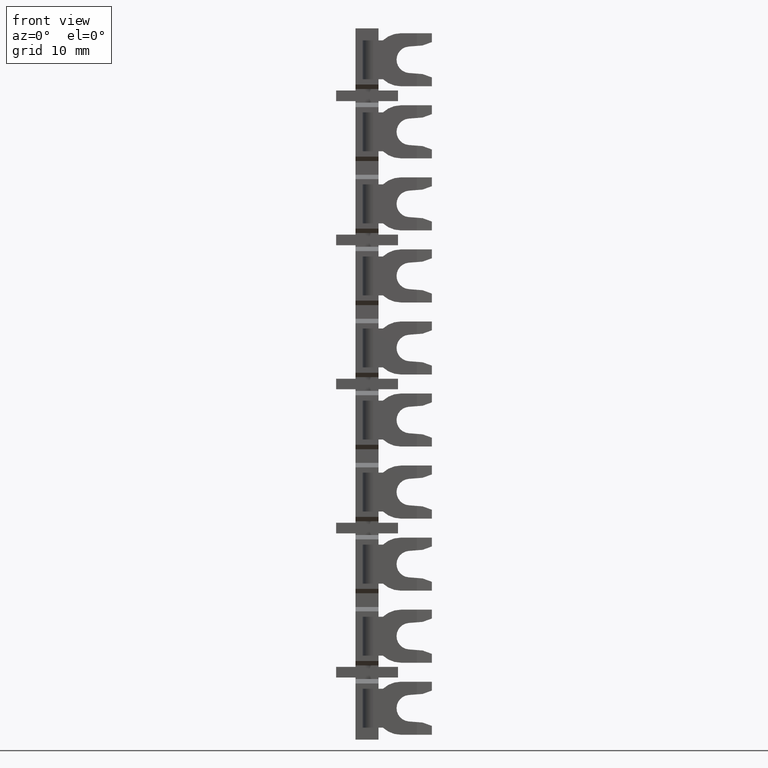
[diagram: clean part render]
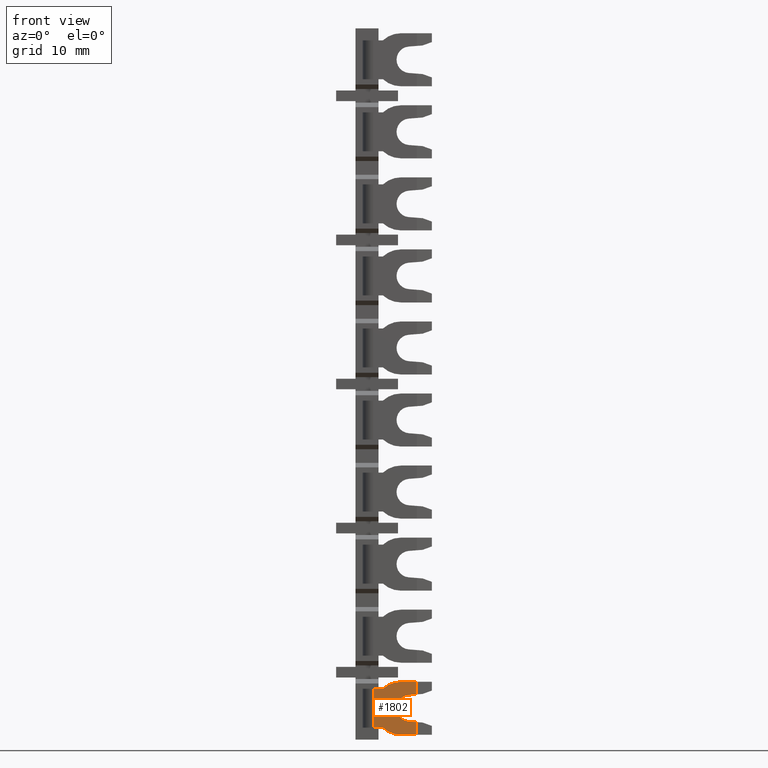
[diagram: same view with one face highlighted and labeled with its STEP entity id]
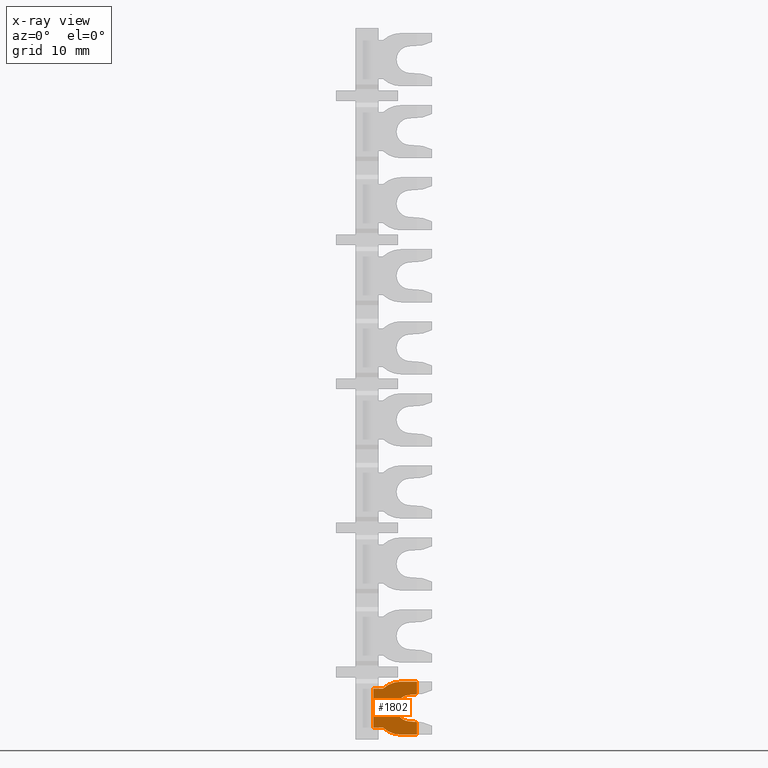
[diagram: x-ray of the same camera — body ghosted, the highlighted face saturated]
A machine part, front view. The second image highlights one B-rep face of the part: STEP entity #1802.
The next image is the same camera in x-ray: the body ghosted, the highlighted face saturated — about 0% of this face is hidden behind the body in this view.
In plain terms, the highlighted planar face has unit normal (0, -1, -0).
Its self-contained STEP definition (entity closure, byte-faithful):
#866 = CARTESIAN_POINT ( 'NONE',  ( 1557.581277334165000, 1078.959529724810000, -66.29999999999999700 ) ) ;
#909 = CARTESIAN_POINT ( 'NONE',  ( 1559.379892790780100, 1078.959529724810000, -66.29999999999999700 ) ) ;
#920 = CARTESIAN_POINT ( 'NONE',  ( 1559.379892790780100, 1078.959529724810000, -72.29999999999999700 ) ) ;
#923 = CARTESIAN_POINT ( 'NONE',  ( 1559.379892790780100, 1078.959529724810000, -70.86695253472190400 ) ) ;
#946 = CARTESIAN_POINT ( 'NONE',  ( 1558.465335063180000, 1078.959529724810000, -70.79543455379109700 ) ) ;
#947 = CARTESIAN_POINT ( 'NONE',  ( 1559.379892790780100, 1078.959529724810000, -67.73304746527878700 ) ) ;
#951 = CARTESIAN_POINT ( 'NONE',  ( 1558.465335063180000, 1078.959529724810000, -67.80456544620939500 ) ) ;
#966 = CARTESIAN_POINT ( 'NONE',  ( 1557.581277334165000, 1078.959529724810000, -72.29999999999999700 ) ) ;
#1802 = ADVANCED_FACE ( 'NONE', ( #12430 ), #12406, .T. ) ;
#2122 = EDGE_LOOP ( 'NONE', ( #14140, #14122, #14130, #14089, #14134, #14159, #14151, #14097, #14126, #14183, #14197, #14186 ) ) ;
#2170 = VERTEX_POINT ( 'NONE', #11976 ) ;
#2212 = VERTEX_POINT ( 'NONE', #12010 ) ;
#2222 = VERTEX_POINT ( 'NONE', #12056 ) ;
#2317 = VERTEX_POINT ( 'NONE', #12144 ) ;
#2691 = VERTEX_POINT ( 'NONE', #920 ) ;
#2692 = VERTEX_POINT ( 'NONE', #866 ) ;
#2696 = VERTEX_POINT ( 'NONE', #909 ) ;
#2727 = VERTEX_POINT ( 'NONE', #947 ) ;
#2728 = VERTEX_POINT ( 'NONE', #946 ) ;
#2738 = VERTEX_POINT ( 'NONE', #923 ) ;
#2744 = VERTEX_POINT ( 'NONE', #951 ) ;
#2747 = VERTEX_POINT ( 'NONE', #966 ) ;
#5059 = AXIS2_PLACEMENT_3D ( 'NONE', #12404, #12423, #12390 ) ;
#8423 = VECTOR ( 'NONE', #13192, 1000.000000000000000 ) ;
#8447 = VECTOR ( 'NONE', #13263, 1000.000000000000000 ) ;
#8448 = VECTOR ( 'NONE', #13244, 1000.000000000000000 ) ;
#8456 = VECTOR ( 'NONE', #13240, 1000.000000000000000 ) ;
#8475 = CIRCLE ( 'NONE', #8485, 1.500000000000001300 ) ;
#8484 = CIRCLE ( 'NONE', #8502, 3.000000000000002700 ) ;
#8485 = AXIS2_PLACEMENT_3D ( 'NONE', #13336, #13368, #13360 ) ;
#8486 = VECTOR ( 'NONE', #13390, 1000.000000000000000 ) ;
#8496 = VECTOR ( 'NONE', #13413, 1000.000000000000000 ) ;
#8502 = AXIS2_PLACEMENT_3D ( 'NONE', #13394, #13399, #13417 ) ;
#8517 = VECTOR ( 'NONE', #13393, 1000.000000000000100 ) ;
#8518 = VECTOR ( 'NONE', #13381, 1000.000000000000000 ) ;
#8519 = VECTOR ( 'NONE', #13383, 1000.000000000000100 ) ;
#8538 = CIRCLE ( 'NONE', #8563, 3.000000000000002700 ) ;
#8563 = AXIS2_PLACEMENT_3D ( 'NONE', #13442, #13456, #13436 ) ;
#9095 = EDGE_CURVE ( 'NONE', #2696, #2727, #13161, .T. ) ;
#9106 = EDGE_CURVE ( 'NONE', #2747, #2691, #13222, .T. ) ;
#9115 = EDGE_CURVE ( 'NONE', #2738, #2691, #13258, .T. ) ;
#9117 = EDGE_CURVE ( 'NONE', #2696, #2692, #13285, .T. ) ;
#9151 = EDGE_CURVE ( 'NONE', #2728, #2744, #8475, .T. ) ;
#9158 = EDGE_CURVE ( 'NONE', #2738, #2728, #13338, .T. ) ;
#9161 = EDGE_CURVE ( 'NONE', #2317, #2170, #13406, .T. ) ;
#9162 = EDGE_CURVE ( 'NONE', #2170, #2222, #13395, .T. ) ;
#9164 = EDGE_CURVE ( 'NONE', #2222, #2212, #13391, .T. ) ;
#9166 = EDGE_CURVE ( 'NONE', #2744, #2727, #13404, .T. ) ;
#9168 = EDGE_CURVE ( 'NONE', #2692, #2212, #8484, .T. ) ;
#9182 = EDGE_CURVE ( 'NONE', #2317, #2747, #8538, .T. ) ;
#11976 = CARTESIAN_POINT ( 'NONE',  ( 1554.445209356664900, 1078.959529724810000, -71.49999999808800100 ) ) ;
#12010 = CARTESIAN_POINT ( 'NONE',  ( 1555.541669528724900, 1078.959529724810000, -67.10000000000000900 ) ) ;
#12056 = CARTESIAN_POINT ( 'NONE',  ( 1554.445209356664900, 1078.959529724810000, -67.09999999808799500 ) ) ;
#12144 = CARTESIAN_POINT ( 'NONE',  ( 1555.541669526664900, 1078.959529724810000, -71.49999999808800100 ) ) ;
#12390 = DIRECTION ( 'NONE',  ( -3.003463711734375200E-015, 1.611929227617499900E-016, -1.000000000000000000 ) ) ;
#12404 = CARTESIAN_POINT ( 'NONE',  ( 1554.245209356665100, 1078.959529724810000, -67.09999999808799500 ) ) ;
#12406 = PLANE ( 'NONE',  #5059 ) ;
#12423 = DIRECTION ( 'NONE',  ( 5.551115123125738900E-017, -1.000000000000000000, -1.611929227617501700E-016 ) ) ;
#12430 = FACE_OUTER_BOUND ( 'NONE', #2122, .T. ) ;
#13161 = LINE ( 'NONE', #13199, #8423 ) ;
#13192 = DIRECTION ( 'NONE',  ( 9.141704923097610000E-016, 1.611929227617504900E-016, -1.000000000000000000 ) ) ;
#13199 = CARTESIAN_POINT ( 'NONE',  ( 1559.379892790780100, 1078.959529724810000, -67.09999999808799500 ) ) ;
#13222 = LINE ( 'NONE', #13235, #8456 ) ;
#13235 = CARTESIAN_POINT ( 'NONE',  ( 1557.581277334165000, 1078.959529724810000, -72.29999999999999700 ) ) ;
#13240 = DIRECTION ( 'NONE',  ( 1.000000000000000000, 2.775557561562874700E-017, -2.042027254913429900E-015 ) ) ;
#13244 = DIRECTION ( 'NONE',  ( 9.141704923097610000E-016, 1.611929227617504900E-016, -1.000000000000000000 ) ) ;
#13258 = LINE ( 'NONE', #13269, #8448 ) ;
#13263 = DIRECTION ( 'NONE',  ( -1.000000000000000000, -2.775557561562889800E-017, 2.785480172658120500E-015 ) ) ;
#13269 = CARTESIAN_POINT ( 'NONE',  ( 1559.379892790780100, 1078.959529724810000, -67.09999999808799500 ) ) ;
#13277 = CARTESIAN_POINT ( 'NONE',  ( 1561.081277336664900, 1078.959529724810000, -66.29999999999999700 ) ) ;
#13285 = LINE ( 'NONE', #13277, #8447 ) ;
#13336 = CARTESIAN_POINT ( 'NONE',  ( 1558.582277336664900, 1078.959529724810000, -69.29999999999999700 ) ) ;
#13338 = LINE ( 'NONE', #13389, #8517 ) ;
#13360 = DIRECTION ( 'NONE',  ( 0.0000000000000000000, 0.0000000000000000000, -1.000000000000000000 ) ) ;
#13368 = DIRECTION ( 'NONE',  ( -5.551115123125779600E-017, 1.000000000000000000, 1.667257283196814900E-031 ) ) ;
#13381 = DIRECTION ( 'NONE',  ( -1.000000000000000000, -2.775557561562949900E-017, 6.502744763859970100E-015 ) ) ;
#13383 = DIRECTION ( 'NONE',  ( 0.9969563691939027400, 1.510425331877623000E-017, 0.07796151565811471100 ) ) ;
#13389 = CARTESIAN_POINT ( 'NONE',  ( 1561.081277336664900, 1078.959529724810000, -71.00000000000000000 ) ) ;
#13390 = DIRECTION ( 'NONE',  ( 2.996938929019320400E-015, -1.611929227617499900E-016, 1.000000000000000000 ) ) ;
#13391 = LINE ( 'NONE', #13407, #8496 ) ;
#13393 = DIRECTION ( 'NONE',  ( -0.9969563691939025100, -4.023794246251191500E-017, 0.07796151565811894300 ) ) ;
#13394 = CARTESIAN_POINT ( 'NONE',  ( 1557.581277334165000, 1078.959529724810000, -69.29999999999999700 ) ) ;
#13395 = LINE ( 'NONE', #13403, #8486 ) ;
#13399 = DIRECTION ( 'NONE',  ( 5.551115123125689600E-017, -1.000000000000000000, -2.891205793294685200E-016 ) ) ;
#13403 = CARTESIAN_POINT ( 'NONE',  ( 1554.445209356664900, 1078.959529724810000, -67.09999999808799500 ) ) ;
#13404 = LINE ( 'NONE', #13409, #8519 ) ;
#13406 = LINE ( 'NONE', #13410, #8518 ) ;
#13407 = CARTESIAN_POINT ( 'NONE',  ( 1554.245209356665100, 1078.959529724810000, -67.09999999808799500 ) ) ;
#13409 = CARTESIAN_POINT ( 'NONE',  ( 1561.081277336664900, 1078.959529724810000, -67.59999999999999400 ) ) ;
#13410 = CARTESIAN_POINT ( 'NONE',  ( 1554.245209356665100, 1078.959529724810000, -71.49999999808800100 ) ) ;
#13413 = DIRECTION ( 'NONE',  ( 1.000000000000000000, 2.775557561562935100E-017, -5.635383025871561100E-015 ) ) ;
#13417 = DIRECTION ( 'NONE',  ( 0.0000000000000000000, 0.0000000000000000000, 1.000000000000000000 ) ) ;
#13436 = DIRECTION ( 'NONE',  ( 0.0000000000000000000, 0.0000000000000000000, 1.000000000000000000 ) ) ;
#13442 = CARTESIAN_POINT ( 'NONE',  ( 1557.581277334165000, 1078.959529724810000, -69.29999999999999700 ) ) ;
#13456 = DIRECTION ( 'NONE',  ( 5.551115123125689600E-017, -1.000000000000000000, -2.891205793294680300E-016 ) ) ;
#14089 = ORIENTED_EDGE ( 'NONE', *, *, #9164, .F. ) ;
#14097 = ORIENTED_EDGE ( 'NONE', *, *, #9106, .T. ) ;
#14122 = ORIENTED_EDGE ( 'NONE', *, *, #9117, .T. ) ;
#14126 = ORIENTED_EDGE ( 'NONE', *, *, #9115, .F. ) ;
#14130 = ORIENTED_EDGE ( 'NONE', *, *, #9168, .T. ) ;
#14134 = ORIENTED_EDGE ( 'NONE', *, *, #9162, .F. ) ;
#14140 = ORIENTED_EDGE ( 'NONE', *, *, #9095, .F. ) ;
#14151 = ORIENTED_EDGE ( 'NONE', *, *, #9182, .T. ) ;
#14159 = ORIENTED_EDGE ( 'NONE', *, *, #9161, .F. ) ;
#14183 = ORIENTED_EDGE ( 'NONE', *, *, #9158, .T. ) ;
#14186 = ORIENTED_EDGE ( 'NONE', *, *, #9166, .T. ) ;
#14197 = ORIENTED_EDGE ( 'NONE', *, *, #9151, .T. ) ;